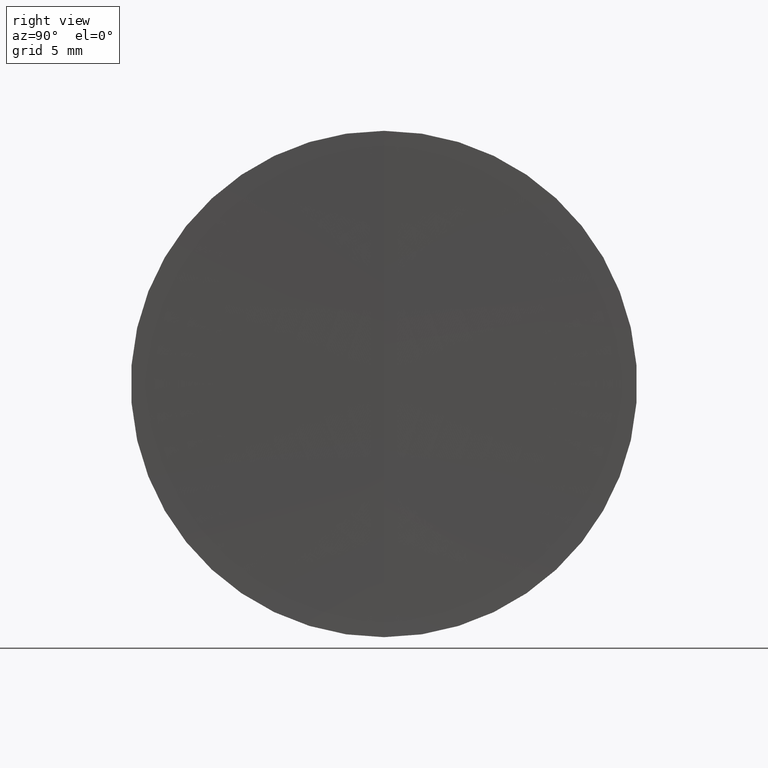
[diagram: clean part render]
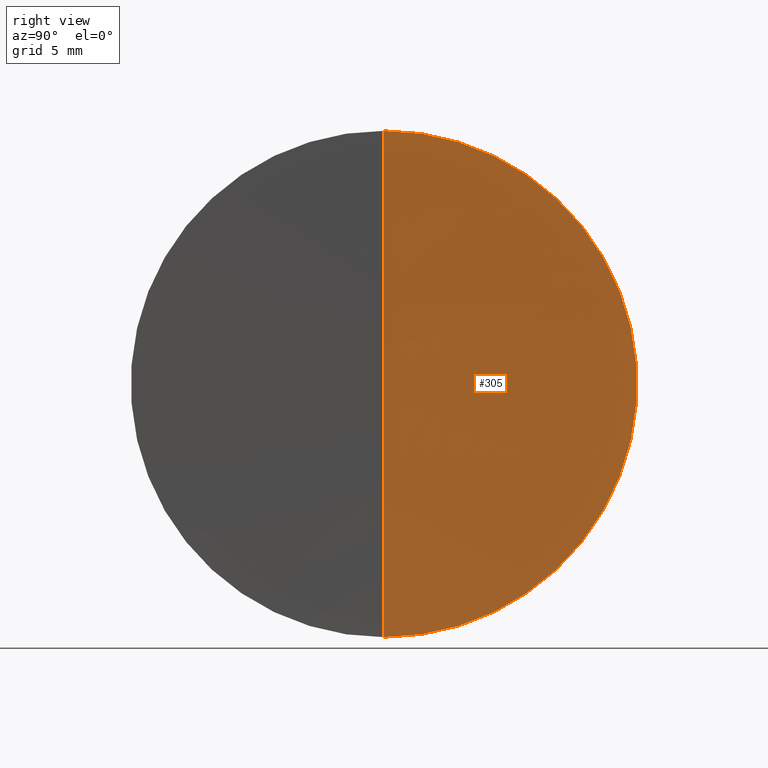
[diagram: same view with one face highlighted and labeled with its STEP entity id]
A machine part, right view. The second image highlights one B-rep face of the part: STEP entity #305.
In plain terms, the highlighted spherical surface has radius 600 mm.
Its self-contained STEP definition (entity closure, byte-faithful):
#18 = CARTESIAN_POINT ( 'NONE',  ( 259.6946505410971900, 0.0000000000000000000, -3.673940397442059500E-014 ) ) ;
#23 = CIRCLE ( 'NONE', #347, 600.0000000000000000 ) ;
#53 = VERTEX_POINT ( 'NONE', #150 ) ;
#58 = ORIENTED_EDGE ( 'NONE', *, *, #229, .F. ) ;
#69 = CARTESIAN_POINT ( 'NONE',  ( 259.8290739324706900, 0.0000000000000000000, 0.0000000000000000000 ) ) ;
#85 = CIRCLE ( 'NONE', #114, 12.69999999999999900 ) ;
#89 = AXIS2_PLACEMENT_3D ( 'NONE', #222, #267, #326 ) ;
#101 = EDGE_CURVE ( 'NONE', #53, #133, #165, .T. ) ;
#114 = AXIS2_PLACEMENT_3D ( 'NONE', #69, #154, #194 ) ;
#132 = FACE_OUTER_BOUND ( 'NONE', #257, .T. ) ;
#133 = VERTEX_POINT ( 'NONE', #18 ) ;
#150 = CARTESIAN_POINT ( 'NONE',  ( 259.8290739324706900, 1.555301434917139400E-015, -12.69999999999999900 ) ) ;
#154 = DIRECTION ( 'NONE',  ( -1.000000000000000000, -0.0000000000000000000, -0.0000000000000000000 ) ) ;
#155 = CARTESIAN_POINT ( 'NONE',  ( 859.6946505410971900, 0.0000000000000000000, 0.0000000000000000000 ) ) ;
#159 = DIRECTION ( 'NONE',  ( -0.0000000000000000000, -1.000000000000000000, -0.0000000000000000000 ) ) ;
#165 = CIRCLE ( 'NONE', #89, 600.0000000000000000 ) ;
#175 = EDGE_CURVE ( 'NONE', #264, #133, #23, .T. ) ;
#189 = SPHERICAL_SURFACE ( 'NONE', #216, 600.0000000000000000 ) ;
#194 = DIRECTION ( 'NONE',  ( 0.0000000000000000000, 0.0000000000000000000, 1.000000000000000000 ) ) ;
#213 = DIRECTION ( 'NONE',  ( 0.0000000000000000000, 1.224646799147353200E-016, -1.000000000000000000 ) ) ;
#216 = AXIS2_PLACEMENT_3D ( 'NONE', #328, #159, #344 ) ;
#222 = CARTESIAN_POINT ( 'NONE',  ( 859.6946505410971900, 0.0000000000000000000, 0.0000000000000000000 ) ) ;
#229 = EDGE_CURVE ( 'NONE', #264, #53, #85, .T. ) ;
#235 = DIRECTION ( 'NONE',  ( 0.0000000000000000000, -1.000000000000000000, -1.224646799147353200E-016 ) ) ;
#245 = CARTESIAN_POINT ( 'NONE',  ( 259.8290739324706900, 0.0000000000000000000, 12.69999999999999900 ) ) ;
#257 = EDGE_LOOP ( 'NONE', ( #58, #346, #322 ) ) ;
#264 = VERTEX_POINT ( 'NONE', #245 ) ;
#267 = DIRECTION ( 'NONE',  ( 0.0000000000000000000, 1.000000000000000000, -0.0000000000000000000 ) ) ;
#305 = ADVANCED_FACE ( 'NONE', ( #132 ), #189, .F. ) ;
#322 = ORIENTED_EDGE ( 'NONE', *, *, #101, .F. ) ;
#326 = DIRECTION ( 'NONE',  ( 0.0000000000000000000, 0.0000000000000000000, 1.000000000000000000 ) ) ;
#328 = CARTESIAN_POINT ( 'NONE',  ( 859.6946505410971900, 0.0000000000000000000, 0.0000000000000000000 ) ) ;
#344 = DIRECTION ( 'NONE',  ( 0.0000000000000000000, 0.0000000000000000000, -1.000000000000000000 ) ) ;
#346 = ORIENTED_EDGE ( 'NONE', *, *, #175, .T. ) ;
#347 = AXIS2_PLACEMENT_3D ( 'NONE', #155, #235, #213 ) ;